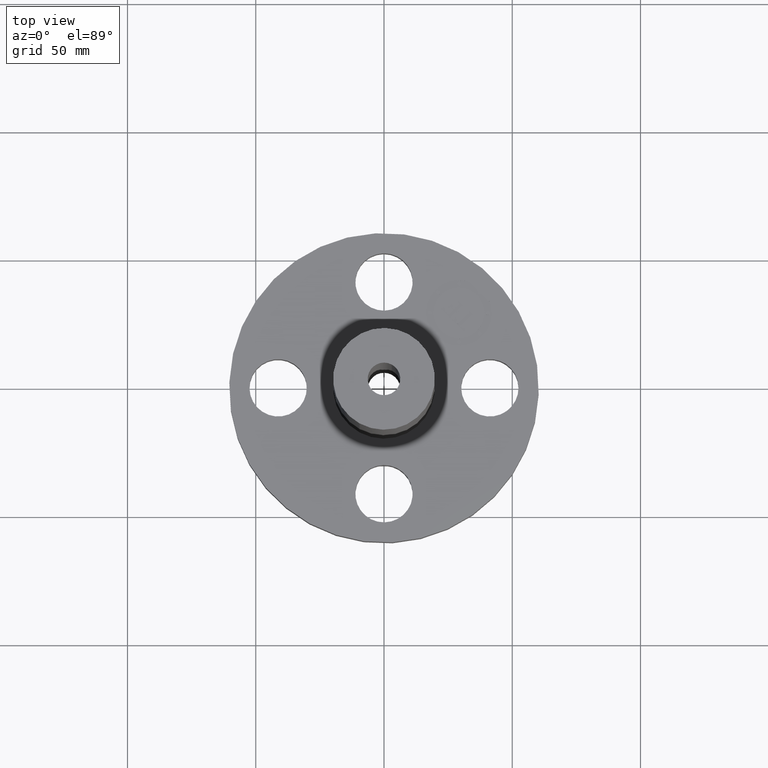
[diagram: clean part render]
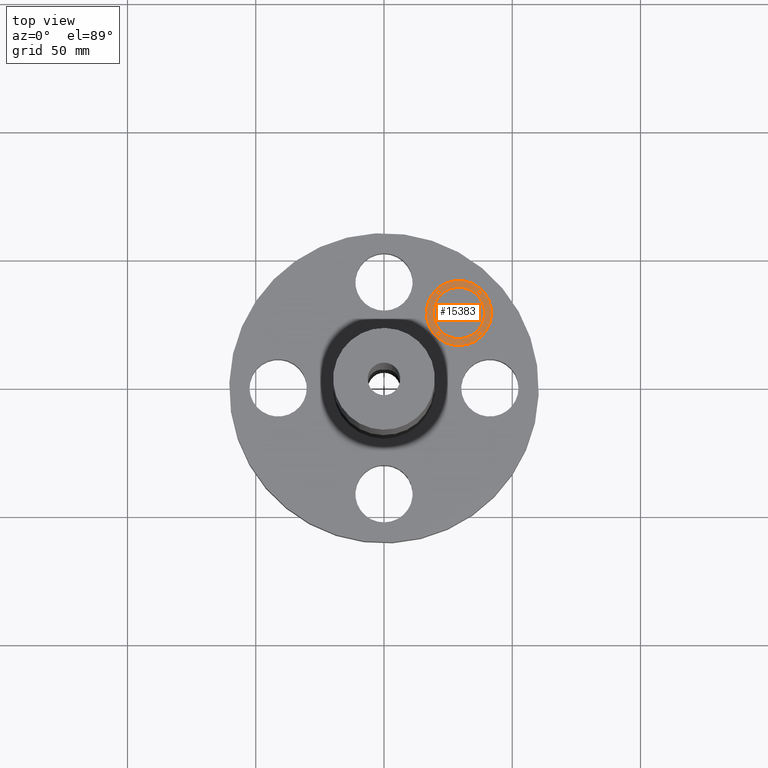
[diagram: same view with one face highlighted and labeled with its STEP entity id]
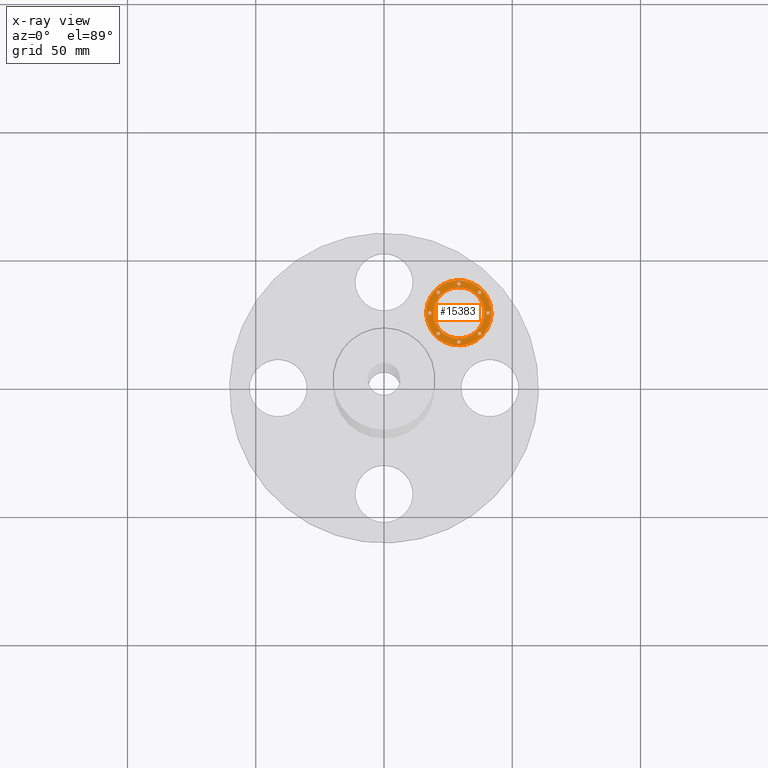
[diagram: x-ray of the same camera — body ghosted, the highlighted face saturated]
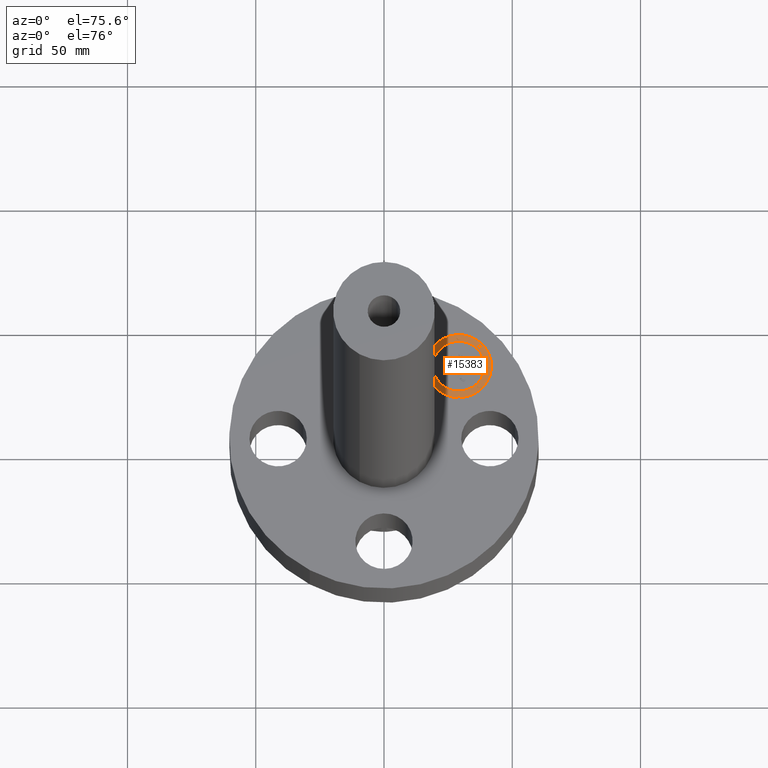
[diagram: same view with one face highlighted and labeled with its STEP entity id]
A machine part, top view. The second image highlights one B-rep face of the part: STEP entity #15383.
The next image is the same camera in x-ray: the body ghosted, the highlighted face saturated — about 0% of this face is hidden behind the body in this view.
A second angle (auxiliary view) of the same face is appended — the face is thin or edge-on in the first view.
In plain terms, the highlighted planar face has unit normal (0, 0, 1).
Its self-contained STEP definition (entity closure, byte-faithful):
#4030=AXIS2_PLACEMENT_3D('Plane Axis2P3D',#4027,#4028,#4029) ;
#15181=AXIS2_PLACEMENT_3D('Circle Axis2P3D',#15179,#15180,$) ;
#15200=AXIS2_PLACEMENT_3D('Circle Axis2P3D',#15198,#15199,$) ;
#15223=AXIS2_PLACEMENT_3D('Circle Axis2P3D',#15221,#15222,$) ;
#15232=AXIS2_PLACEMENT_3D('Circle Axis2P3D',#15230,#15231,$) ;
#15241=AXIS2_PLACEMENT_3D('Circle Axis2P3D',#15239,#15240,$) ;
#15250=AXIS2_PLACEMENT_3D('Circle Axis2P3D',#15248,#15249,$) ;
#15259=AXIS2_PLACEMENT_3D('Circle Axis2P3D',#15257,#15258,$) ;
#15268=AXIS2_PLACEMENT_3D('Circle Axis2P3D',#15266,#15267,$) ;
#15277=AXIS2_PLACEMENT_3D('Circle Axis2P3D',#15275,#15276,$) ;
#15286=AXIS2_PLACEMENT_3D('Circle Axis2P3D',#15284,#15285,$) ;
#15295=AXIS2_PLACEMENT_3D('Circle Axis2P3D',#15293,#15294,$) ;
#15304=AXIS2_PLACEMENT_3D('Circle Axis2P3D',#15302,#15303,$) ;
#15313=AXIS2_PLACEMENT_3D('Circle Axis2P3D',#15311,#15312,$) ;
#15322=AXIS2_PLACEMENT_3D('Circle Axis2P3D',#15320,#15321,$) ;
#15331=AXIS2_PLACEMENT_3D('Circle Axis2P3D',#15329,#15330,$) ;
#15340=AXIS2_PLACEMENT_3D('Circle Axis2P3D',#15338,#15339,$) ;
#15349=AXIS2_PLACEMENT_3D('Circle Axis2P3D',#15347,#15348,$) ;
#15358=AXIS2_PLACEMENT_3D('Circle Axis2P3D',#15356,#15357,$) ;
#15367=AXIS2_PLACEMENT_3D('Circle Axis2P3D',#15365,#15366,$) ;
#15376=AXIS2_PLACEMENT_3D('Circle Axis2P3D',#15374,#15375,$) ;
#4027=CARTESIAN_POINT('Axis2P3D Location',(0.,0.,0.875000000004)) ;
#15169=CARTESIAN_POINT('Vertex',(0.795495132374,1.50260190649,0.875000000004)) ;
#15176=CARTESIAN_POINT('Vertex',(1.50260190649,0.795495132374,0.875000000004)) ;
#15179=CARTESIAN_POINT('Axis2P3D Location',(1.14904851943,1.14904851943,0.875000000004)) ;
#15198=CARTESIAN_POINT('Axis2P3D Location',(1.14904851943,1.14904851943,0.875000000004)) ;
#15221=CARTESIAN_POINT('Axis2P3D Location',(1.14904851943,1.14904851943,0.875000000004)) ;
#15225=CARTESIAN_POINT('Vertex',(1.42760573348,0.870491305386,0.875000000004)) ;
#15227=CARTESIAN_POINT('Vertex',(0.870491305386,1.42760573348,0.875000000004)) ;
#15230=CARTESIAN_POINT('Axis2P3D Location',(1.14904851943,1.14904851943,0.875000000004)) ;
#15239=CARTESIAN_POINT('Axis2P3D Location',(0.83299321888,0.83299321888,0.875000000004)) ;
#15243=CARTESIAN_POINT('Vertex',(0.854420696883,0.811565740876,0.875000000004)) ;
#15245=CARTESIAN_POINT('Vertex',(0.811565740876,0.854420696883,0.875000000004)) ;
#15248=CARTESIAN_POINT('Axis2P3D Location',(0.83299321888,0.83299321888,0.875000000004)) ;
#15257=CARTESIAN_POINT('Axis2P3D Location',(0.83299321888,1.46510381999,0.875000000004)) ;
#15261=CARTESIAN_POINT('Vertex',(0.854420696883,1.44367634198,0.875000000004)) ;
#15263=CARTESIAN_POINT('Vertex',(0.811565740876,1.48653129799,0.875000000004)) ;
#15266=CARTESIAN_POINT('Axis2P3D Location',(0.83299321888,1.46510381999,0.875000000004)) ;
#15275=CARTESIAN_POINT('Axis2P3D Location',(0.702078826931,1.14904851943,0.875000000004)) ;
#15279=CARTESIAN_POINT('Vertex',(0.723506304934,1.12762104143,0.875000000004)) ;
#15281=CARTESIAN_POINT('Vertex',(0.680651348927,1.17047599744,0.875000000004)) ;
#15284=CARTESIAN_POINT('Axis2P3D Location',(0.702078826931,1.14904851943,0.875000000004)) ;
#15293=CARTESIAN_POINT('Axis2P3D Location',(1.46510381999,1.46510381999,0.875000000004)) ;
#15297=CARTESIAN_POINT('Vertex',(1.48653129799,1.44367634198,0.875000000004)) ;
#15299=CARTESIAN_POINT('Vertex',(1.44367634198,1.48653129799,0.875000000004)) ;
#15302=CARTESIAN_POINT('Axis2P3D Location',(1.46510381999,1.46510381999,0.875000000004)) ;
#15311=CARTESIAN_POINT('Axis2P3D Location',(1.14904851943,1.59601821193,0.875000000004)) ;
#15315=CARTESIAN_POINT('Vertex',(1.17047599744,1.57459073393,0.875000000004)) ;
#15317=CARTESIAN_POINT('Vertex',(1.12762104143,1.61744568994,0.875000000004)) ;
#15320=CARTESIAN_POINT('Axis2P3D Location',(1.14904851943,1.59601821193,0.875000000004)) ;
#15329=CARTESIAN_POINT('Axis2P3D Location',(1.46510381999,0.83299321888,0.875000000004)) ;
#15333=CARTESIAN_POINT('Vertex',(1.44367634198,0.854420696883,0.875000000004)) ;
#15335=CARTESIAN_POINT('Vertex',(1.48653129799,0.811565740876,0.875000000004)) ;
#15338=CARTESIAN_POINT('Axis2P3D Location',(1.46510381999,0.83299321888,0.875000000004)) ;
#15347=CARTESIAN_POINT('Axis2P3D Location',(1.14904851943,0.702078826931,0.875000000004)) ;
#15351=CARTESIAN_POINT('Vertex',(1.12762104143,0.723506304935,0.875000000004)) ;
#15353=CARTESIAN_POINT('Vertex',(1.17047599744,0.680651348927,0.875000000004)) ;
#15356=CARTESIAN_POINT('Axis2P3D Location',(1.14904851943,0.702078826931,0.875000000004)) ;
#15365=CARTESIAN_POINT('Axis2P3D Location',(1.59601821193,1.14904851943,0.875000000004)) ;
#15369=CARTESIAN_POINT('Vertex',(1.57459073393,1.17047599744,0.875000000004)) ;
#15371=CARTESIAN_POINT('Vertex',(1.61744568994,1.12762104143,0.875000000004)) ;
#15374=CARTESIAN_POINT('Axis2P3D Location',(1.59601821193,1.14904851943,0.875000000004)) ;
#4028=DIRECTION('Axis2P3D Direction',(0.,0.,0.0393700787402)) ;
#4029=DIRECTION('Axis2P3D XDirection',(0.0393700787402,0.,0.)) ;
#15180=DIRECTION('Axis2P3D Direction',(0.,0.,0.0393700787402)) ;
#15199=DIRECTION('Axis2P3D Direction',(0.,0.,0.0393700787402)) ;
#15222=DIRECTION('Axis2P3D Direction',(0.,0.,0.0393700787402)) ;
#15231=DIRECTION('Axis2P3D Direction',(0.,0.,0.0393700787402)) ;
#15240=DIRECTION('Axis2P3D Direction',(0.,0.,0.0393700787402)) ;
#15249=DIRECTION('Axis2P3D Direction',(0.,0.,0.0393700787402)) ;
#15258=DIRECTION('Axis2P3D Direction',(0.,0.,0.0393700787402)) ;
#15267=DIRECTION('Axis2P3D Direction',(0.,0.,0.0393700787402)) ;
#15276=DIRECTION('Axis2P3D Direction',(0.,0.,0.0393700787402)) ;
#15285=DIRECTION('Axis2P3D Direction',(0.,0.,0.0393700787402)) ;
#15294=DIRECTION('Axis2P3D Direction',(0.,0.,0.0393700787402)) ;
#15303=DIRECTION('Axis2P3D Direction',(0.,0.,0.0393700787402)) ;
#15312=DIRECTION('Axis2P3D Direction',(0.,0.,0.0393700787402)) ;
#15321=DIRECTION('Axis2P3D Direction',(0.,0.,0.0393700787402)) ;
#15330=DIRECTION('Axis2P3D Direction',(0.,0.,0.0393700787402)) ;
#15339=DIRECTION('Axis2P3D Direction',(0.,0.,0.0393700787402)) ;
#15348=DIRECTION('Axis2P3D Direction',(0.,0.,0.0393700787402)) ;
#15357=DIRECTION('Axis2P3D Direction',(0.,0.,0.0393700787402)) ;
#15366=DIRECTION('Axis2P3D Direction',(0.,0.,0.0393700787402)) ;
#15375=DIRECTION('Axis2P3D Direction',(0.,0.,0.0393700787402)) ;
#15218=ORIENTED_EDGE('',*,*,#15183,.T.) ;
#15219=ORIENTED_EDGE('',*,*,#15202,.T.) ;
#15236=ORIENTED_EDGE('',*,*,#15229,.F.) ;
#15237=ORIENTED_EDGE('',*,*,#15234,.F.) ;
#15254=ORIENTED_EDGE('',*,*,#15247,.F.) ;
#15255=ORIENTED_EDGE('',*,*,#15252,.F.) ;
#15272=ORIENTED_EDGE('',*,*,#15265,.F.) ;
#15273=ORIENTED_EDGE('',*,*,#15270,.F.) ;
#15290=ORIENTED_EDGE('',*,*,#15283,.F.) ;
#15291=ORIENTED_EDGE('',*,*,#15288,.F.) ;
#15308=ORIENTED_EDGE('',*,*,#15301,.F.) ;
#15309=ORIENTED_EDGE('',*,*,#15306,.F.) ;
#15326=ORIENTED_EDGE('',*,*,#15319,.F.) ;
#15327=ORIENTED_EDGE('',*,*,#15324,.F.) ;
#15344=ORIENTED_EDGE('',*,*,#15337,.F.) ;
#15345=ORIENTED_EDGE('',*,*,#15342,.F.) ;
#15362=ORIENTED_EDGE('',*,*,#15355,.F.) ;
#15363=ORIENTED_EDGE('',*,*,#15360,.F.) ;
#15380=ORIENTED_EDGE('',*,*,#15373,.F.) ;
#15381=ORIENTED_EDGE('',*,*,#15378,.F.) ;
#15238=FACE_BOUND('',#15235,.T.) ;
#15256=FACE_BOUND('',#15253,.T.) ;
#15274=FACE_BOUND('',#15271,.T.) ;
#15292=FACE_BOUND('',#15289,.T.) ;
#15310=FACE_BOUND('',#15307,.T.) ;
#15328=FACE_BOUND('',#15325,.T.) ;
#15346=FACE_BOUND('',#15343,.T.) ;
#15364=FACE_BOUND('',#15361,.T.) ;
#15382=FACE_BOUND('',#15379,.T.) ;
#15383=ADVANCED_FACE('PartBody',(#15220,#15238,#15256,#15274,#15292,#15310,#15328,#15346,#15364,#15382),#4031,.T.) ;
#15182=CIRCLE('generated circle',#15181,0.499999995002) ;
#15201=CIRCLE('generated circle',#15200,0.499999995002) ;
#15224=CIRCLE('generated circle',#15223,0.393939390002) ;
#15233=CIRCLE('generated circle',#15232,0.393939390002) ;
#15242=CIRCLE('generated circle',#15241,0.0303030300001) ;
#15251=CIRCLE('generated circle',#15250,0.0303030300001) ;
#15260=CIRCLE('generated circle',#15259,0.0303030300001) ;
#15269=CIRCLE('generated circle',#15268,0.0303030300001) ;
#15278=CIRCLE('generated circle',#15277,0.0303030300001) ;
#15287=CIRCLE('generated circle',#15286,0.0303030300001) ;
#15296=CIRCLE('generated circle',#15295,0.0303030300001) ;
#15305=CIRCLE('generated circle',#15304,0.0303030300001) ;
#15314=CIRCLE('generated circle',#15313,0.0303030300001) ;
#15323=CIRCLE('generated circle',#15322,0.0303030300001) ;
#15332=CIRCLE('generated circle',#15331,0.0303030300001) ;
#15341=CIRCLE('generated circle',#15340,0.0303030300001) ;
#15350=CIRCLE('generated circle',#15349,0.0303030300001) ;
#15359=CIRCLE('generated circle',#15358,0.0303030300001) ;
#15368=CIRCLE('generated circle',#15367,0.0303030300001) ;
#15377=CIRCLE('generated circle',#15376,0.0303030300001) ;
#15183=EDGE_CURVE('',#15170,#15177,#15182,.T.) ;
#15202=EDGE_CURVE('',#15177,#15170,#15201,.T.) ;
#15229=EDGE_CURVE('',#15226,#15228,#15224,.T.) ;
#15234=EDGE_CURVE('',#15228,#15226,#15233,.T.) ;
#15247=EDGE_CURVE('',#15244,#15246,#15242,.T.) ;
#15252=EDGE_CURVE('',#15246,#15244,#15251,.T.) ;
#15265=EDGE_CURVE('',#15262,#15264,#15260,.T.) ;
#15270=EDGE_CURVE('',#15264,#15262,#15269,.T.) ;
#15283=EDGE_CURVE('',#15280,#15282,#15278,.T.) ;
#15288=EDGE_CURVE('',#15282,#15280,#15287,.T.) ;
#15301=EDGE_CURVE('',#15298,#15300,#15296,.T.) ;
#15306=EDGE_CURVE('',#15300,#15298,#15305,.T.) ;
#15319=EDGE_CURVE('',#15316,#15318,#15314,.T.) ;
#15324=EDGE_CURVE('',#15318,#15316,#15323,.T.) ;
#15337=EDGE_CURVE('',#15334,#15336,#15332,.T.) ;
#15342=EDGE_CURVE('',#15336,#15334,#15341,.T.) ;
#15355=EDGE_CURVE('',#15352,#15354,#15350,.T.) ;
#15360=EDGE_CURVE('',#15354,#15352,#15359,.T.) ;
#15373=EDGE_CURVE('',#15370,#15372,#15368,.T.) ;
#15378=EDGE_CURVE('',#15372,#15370,#15377,.T.) ;
#15217=EDGE_LOOP('',(#15218,#15219)) ;
#15235=EDGE_LOOP('',(#15236,#15237)) ;
#15253=EDGE_LOOP('',(#15254,#15255)) ;
#15271=EDGE_LOOP('',(#15272,#15273)) ;
#15289=EDGE_LOOP('',(#15290,#15291)) ;
#15307=EDGE_LOOP('',(#15308,#15309)) ;
#15325=EDGE_LOOP('',(#15326,#15327)) ;
#15343=EDGE_LOOP('',(#15344,#15345)) ;
#15361=EDGE_LOOP('',(#15362,#15363)) ;
#15379=EDGE_LOOP('',(#15380,#15381)) ;
#15220=FACE_OUTER_BOUND('',#15217,.T.) ;
#4031=PLANE('',#4030) ;
#15170=VERTEX_POINT('',#15169) ;
#15177=VERTEX_POINT('',#15176) ;
#15226=VERTEX_POINT('',#15225) ;
#15228=VERTEX_POINT('',#15227) ;
#15244=VERTEX_POINT('',#15243) ;
#15246=VERTEX_POINT('',#15245) ;
#15262=VERTEX_POINT('',#15261) ;
#15264=VERTEX_POINT('',#15263) ;
#15280=VERTEX_POINT('',#15279) ;
#15282=VERTEX_POINT('',#15281) ;
#15298=VERTEX_POINT('',#15297) ;
#15300=VERTEX_POINT('',#15299) ;
#15316=VERTEX_POINT('',#15315) ;
#15318=VERTEX_POINT('',#15317) ;
#15334=VERTEX_POINT('',#15333) ;
#15336=VERTEX_POINT('',#15335) ;
#15352=VERTEX_POINT('',#15351) ;
#15354=VERTEX_POINT('',#15353) ;
#15370=VERTEX_POINT('',#15369) ;
#15372=VERTEX_POINT('',#15371) ;